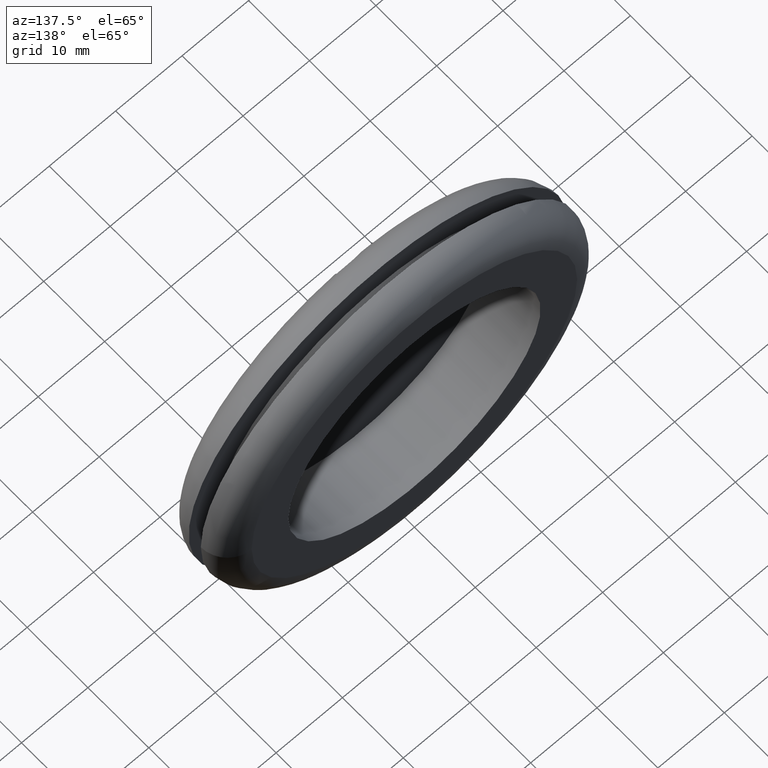
[diagram: clean part render]
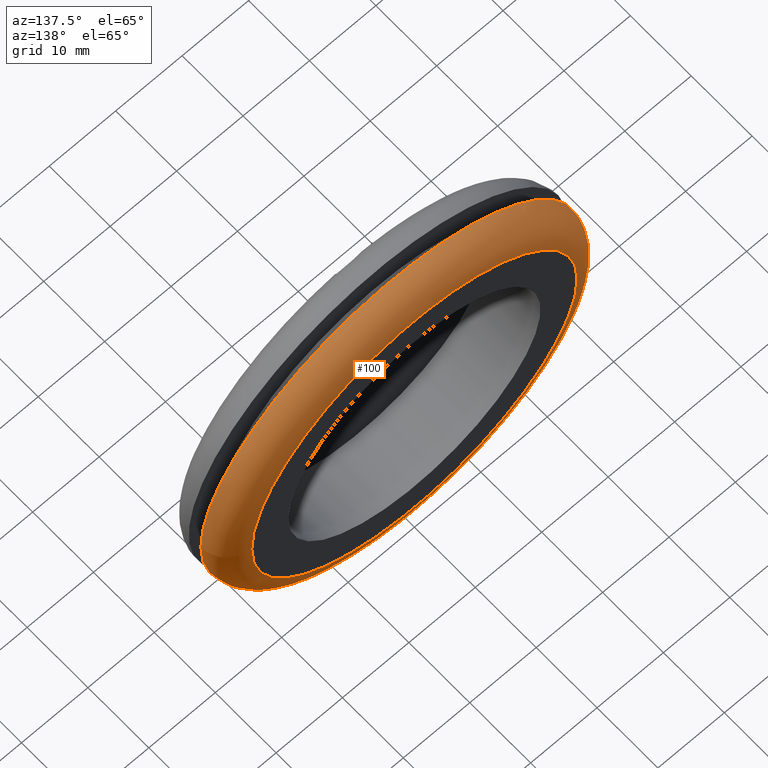
[diagram: same view with one face highlighted and labeled with its STEP entity id]
A machine part, auxiliary view. The second image highlights one B-rep face of the part: STEP entity #100.
In plain terms, the highlighted toroidal blend (fillet) surface has major radius 24.5 mm and minor (blend) radius 4 mm.
Its self-contained STEP definition (entity closure, byte-faithful):
#16=TOROIDAL_SURFACE('',#115,24.5,4.);
#24=FACE_BOUND('',#45,.T.);
#33=FACE_OUTER_BOUND('',#44,.T.);
#44=EDGE_LOOP('',(#84));
#45=EDGE_LOOP('',(#85));
#58=CIRCLE('',#116,28.5);
#59=CIRCLE('',#117,24.5);
#66=VERTEX_POINT('',#174);
#67=VERTEX_POINT('',#176);
#74=EDGE_CURVE('',#66,#66,#58,.T.);
#75=EDGE_CURVE('',#67,#67,#59,.T.);
#84=ORIENTED_EDGE('',*,*,#74,.T.);
#85=ORIENTED_EDGE('',*,*,#75,.T.);
#100=ADVANCED_FACE('',(#33,#24),#16,.T.);
#115=AXIS2_PLACEMENT_3D('',#173,#142,#143);
#116=AXIS2_PLACEMENT_3D('',#175,#144,#145);
#117=AXIS2_PLACEMENT_3D('',#177,#146,#147);
#142=DIRECTION('center_axis',(0.,1.,0.));
#143=DIRECTION('ref_axis',(0.,0.,1.));
#144=DIRECTION('center_axis',(0.,1.,0.));
#145=DIRECTION('ref_axis',(1.,0.,0.));
#146=DIRECTION('center_axis',(0.,-1.,0.));
#147=DIRECTION('ref_axis',(-1.,0.,-1.22464679914735E-16));
#173=CARTESIAN_POINT('Origin',(0.,6.,0.));
#174=CARTESIAN_POINT('',(28.5,6.,0.));
#175=CARTESIAN_POINT('Origin',(0.,6.,0.));
#176=CARTESIAN_POINT('',(24.5,10.,6.00076931582203E-15));
#177=CARTESIAN_POINT('Origin',(0.,10.,0.));